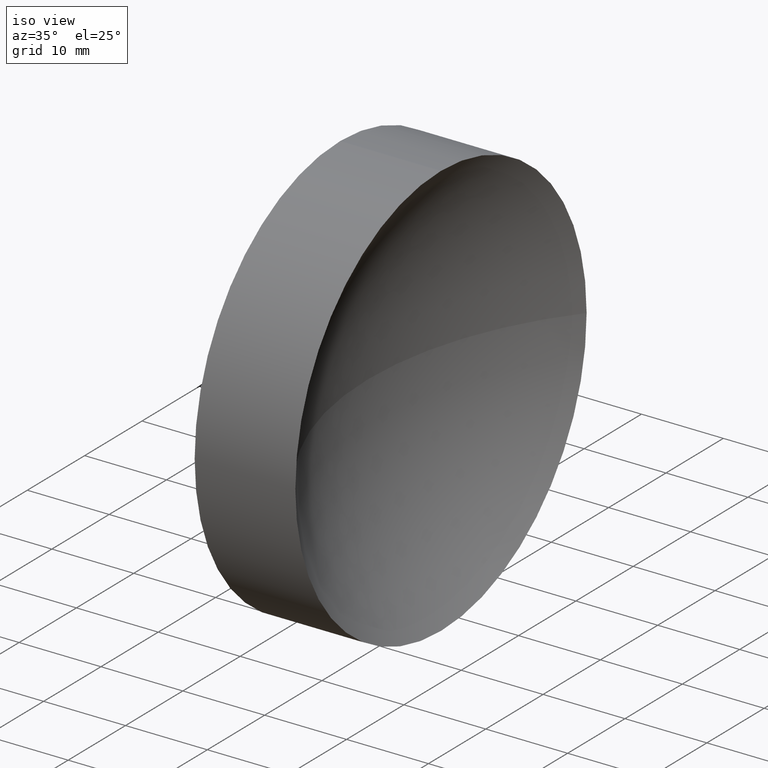
[diagram: clean part render]
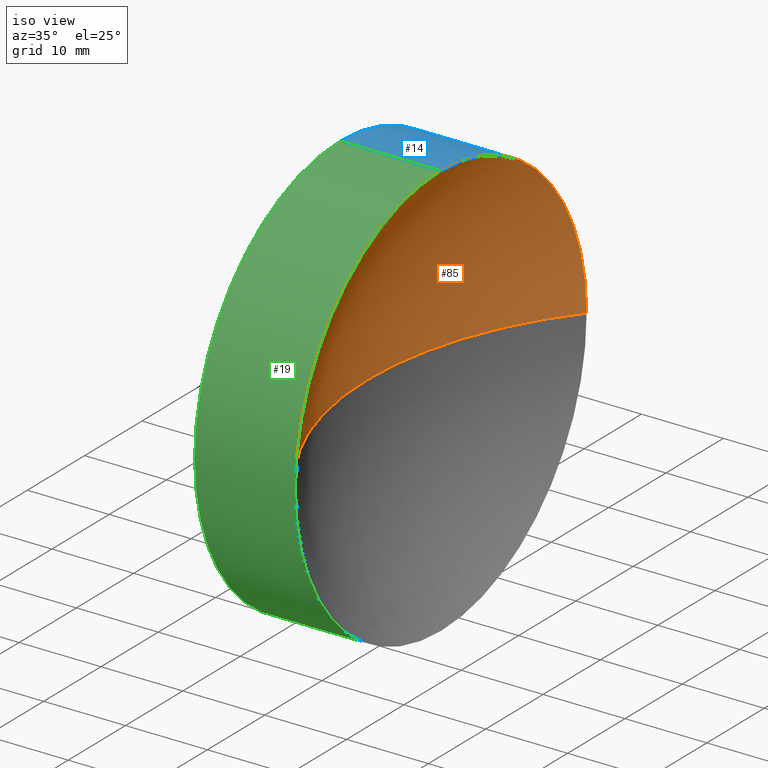
[diagram: same view with three faces highlighted in distinct colors, each labeled with its STEP entity id]
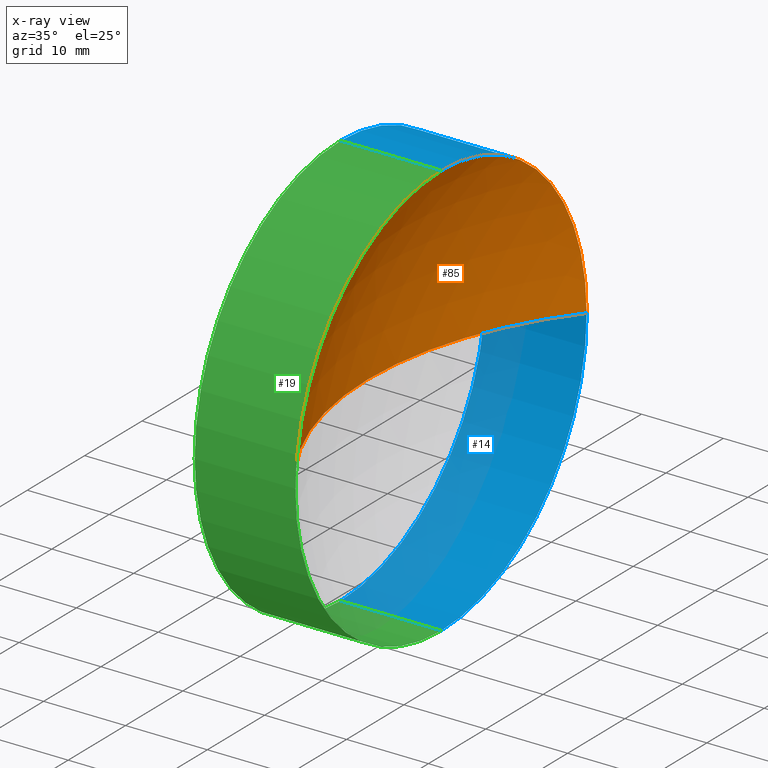
[diagram: x-ray of the same camera — body ghosted, the three highlighted faces saturated]
A machine part, iso view with three faces highlighted in distinct colors.
The next image is the same camera in x-ray (body ghosted, the three faces saturated) — at least one of them is partly hidden behind the body in this view.
Their STEP definitions:

[orange] entity #85 — the highlighted spherical surface has radius 40.6 mm.
#8 = VERTEX_POINT ( 'NONE', #82 ) ;
#26 = EDGE_LOOP ( 'NONE', ( #86, #87, #88, #89 ) ) ;
#44 = VERTEX_POINT ( 'NONE', #189 ) ;
#46 = EDGE_CURVE ( 'NONE', #58, #44, #187, .T. ) ;
#56 = EDGE_CURVE ( 'NONE', #57, #58, #265, .T. ) ;
#57 = VERTEX_POINT ( 'NONE', #260 ) ;
#58 = VERTEX_POINT ( 'NONE', #259 ) ;
#60 = EDGE_CURVE ( 'NONE', #57, #8, #257, .T. ) ;
#82 = CARTESIAN_POINT ( 'NONE',  ( -2.977472932124407100, 0.3589329228707138800, 0.8722530675037538600 ) ) ;
#84 = EDGE_CURVE ( 'NONE', #44, #8, #251, .T. ) ;
#85 = ADVANCED_FACE ( 'NONE', ( #247 ), #281, .F. ) ;
#86 = ORIENTED_EDGE ( 'NONE', *, *, #60, .F. ) ;
#87 = ORIENTED_EDGE ( 'NONE', *, *, #56, .T. ) ;
#88 = ORIENTED_EDGE ( 'NONE', *, *, #46, .T. ) ;
#89 = ORIENTED_EDGE ( 'NONE', *, *, #84, .T. ) ;
#183 = DIRECTION ( 'NONE',  ( 0.0000000000000000000, 0.0000000000000000000, -1.000000000000000000 ) ) ;
#184 = DIRECTION ( 'NONE',  ( 1.000000000000000000, 0.0000000000000000000, 0.0000000000000000000 ) ) ;
#185 = CARTESIAN_POINT ( 'NONE',  ( -2.977472932124407100, 1.358932922870714100, 0.8722530675037537500 ) ) ;
#186 = AXIS2_PLACEMENT_3D ( 'NONE', #185, #184, #183 ) ;
#187 = CIRCLE ( 'NONE', #186, 1.000000000000000000 ) ;
#189 = CARTESIAN_POINT ( 'NONE',  ( -2.977472932124407100, 1.358932922870714100, 1.872253067503753600 ) ) ;
#247 = FACE_OUTER_BOUND ( 'NONE', #26, .T. ) ;
#248 = DIRECTION ( 'NONE',  ( 0.0000000000000000000, 0.0000000000000000000, -1.000000000000000000 ) ) ;
#249 = DIRECTION ( 'NONE',  ( 1.000000000000000000, 0.0000000000000000000, 0.0000000000000000000 ) ) ;
#250 = AXIS2_PLACEMENT_3D ( 'NONE', #258, #249, #248 ) ;
#251 = CIRCLE ( 'NONE', #250, 1.000000000000000000 ) ;
#253 = DIRECTION ( 'NONE',  ( 0.0000000000000000000, -1.000000000000000000, 8.545435842250277300E-017 ) ) ;
#254 = DIRECTION ( 'NONE',  ( 0.0000000000000000000, 1.224606353822377300E-016, 1.000000000000000000 ) ) ;
#255 = CARTESIAN_POINT ( 'NONE',  ( -1.730491332450129400, 1.358932922870714100, 0.8722530675037537500 ) ) ;
#256 = AXIS2_PLACEMENT_3D ( 'NONE', #255, #254, #253 ) ;
#257 = CIRCLE ( 'NONE', #256, 1.598425196850394400 ) ;
#258 = CARTESIAN_POINT ( 'NONE',  ( -2.977472932124407100, 1.358932922870714100, 0.8722530675037537500 ) ) ;
#259 = CARTESIAN_POINT ( 'NONE',  ( -2.977472932124407100, 2.358932922870714300, 0.8722530675037537500 ) ) ;
#260 = CARTESIAN_POINT ( 'NONE',  ( -3.328916529300524300, 1.358932922870714100, 0.8722530675037537500 ) ) ;
#261 = DIRECTION ( 'NONE',  ( -1.000000000000000000, 0.0000000000000000000, 0.0000000000000000000 ) ) ;
#262 = DIRECTION ( 'NONE',  ( 0.0000000000000000000, 0.0000000000000000000, -1.000000000000000000 ) ) ;
#263 = CARTESIAN_POINT ( 'NONE',  ( -1.730491332450129400, 1.358932922870714100, 0.8722530675037537500 ) ) ;
#264 = AXIS2_PLACEMENT_3D ( 'NONE', #263, #262, #261 ) ;
#265 = CIRCLE ( 'NONE', #264, 1.598425196850394600 ) ;
#278 = DIRECTION ( 'NONE',  ( 0.0000000000000000000, 1.000000000000000000, 0.0000000000000000000 ) ) ;
#279 = DIRECTION ( 'NONE',  ( 0.0000000000000000000, 0.0000000000000000000, 1.000000000000000000 ) ) ;
#280 = AXIS2_PLACEMENT_3D ( 'NONE', #282, #279, #278 ) ;
#281 = SPHERICAL_SURFACE ( 'NONE', #280, 1.598425196850394400 ) ;
#282 = CARTESIAN_POINT ( 'NONE',  ( -1.730491332450129400, 1.358932922870714100, 0.8722530675037537500 ) ) ;

[blue] entity #14 — the highlighted cylindrical surface (partial cylindrical patch) has radius 25.4 mm, axis along (1, 0, 0).
#11 = VERTEX_POINT ( 'NONE', #76 ) ;
#13 = EDGE_CURVE ( 'NONE', #11, #58, #74, .T. ) ;
#14 = ADVANCED_FACE ( 'NONE', ( #69 ), #108, .T. ) ;
#15 = EDGE_LOOP ( 'NONE', ( #16, #42, #45, #47, #48, #51 ) ) ;
#16 = ORIENTED_EDGE ( 'NONE', *, *, #39, .T. ) ;
#39 = EDGE_CURVE ( 'NONE', #40, #41, #200, .T. ) ;
#40 = VERTEX_POINT ( 'NONE', #195 ) ;
#41 = VERTEX_POINT ( 'NONE', #194 ) ;
#42 = ORIENTED_EDGE ( 'NONE', *, *, #43, .T. ) ;
#43 = EDGE_CURVE ( 'NONE', #41, #44, #193, .T. ) ;
#44 = VERTEX_POINT ( 'NONE', #189 ) ;
#45 = ORIENTED_EDGE ( 'NONE', *, *, #46, .F. ) ;
#46 = EDGE_CURVE ( 'NONE', #58, #44, #187, .T. ) ;
#47 = ORIENTED_EDGE ( 'NONE', *, *, #13, .F. ) ;
#48 = ORIENTED_EDGE ( 'NONE', *, *, #49, .F. ) ;
#49 = EDGE_CURVE ( 'NONE', #50, #11, #188, .T. ) ;
#50 = VERTEX_POINT ( 'NONE', #233 ) ;
#51 = ORIENTED_EDGE ( 'NONE', *, *, #52, .T. ) ;
#52 = EDGE_CURVE ( 'NONE', #50, #40, #231, .T. ) ;
#58 = VERTEX_POINT ( 'NONE', #259 ) ;
#69 = FACE_OUTER_BOUND ( 'NONE', #15, .T. ) ;
#70 = DIRECTION ( 'NONE',  ( 0.0000000000000000000, 0.0000000000000000000, -1.000000000000000000 ) ) ;
#71 = DIRECTION ( 'NONE',  ( 1.000000000000000000, 0.0000000000000000000, 0.0000000000000000000 ) ) ;
#72 = CARTESIAN_POINT ( 'NONE',  ( -2.977472932124407100, 1.358932922870714100, 0.8722530675037537500 ) ) ;
#73 = AXIS2_PLACEMENT_3D ( 'NONE', #72, #71, #70 ) ;
#74 = CIRCLE ( 'NONE', #73, 1.000000000000000000 ) ;
#76 = CARTESIAN_POINT ( 'NONE',  ( -2.977472932124407100, 1.358932922870714100, -0.1277469324962462700 ) ) ;
#105 = DIRECTION ( 'NONE',  ( 0.0000000000000000000, 0.0000000000000000000, -1.000000000000000000 ) ) ;
#106 = DIRECTION ( 'NONE',  ( 1.000000000000000000, 0.0000000000000000000, 0.0000000000000000000 ) ) ;
#107 = AXIS2_PLACEMENT_3D ( 'NONE', #111, #106, #105 ) ;
#108 = CYLINDRICAL_SURFACE ( 'NONE', #107, 1.000000000000000700 ) ;
#111 = CARTESIAN_POINT ( 'NONE',  ( -3.328916529300524300, 1.358932922870714100, 0.8722530675037537500 ) ) ;
#183 = DIRECTION ( 'NONE',  ( 0.0000000000000000000, 0.0000000000000000000, -1.000000000000000000 ) ) ;
#184 = DIRECTION ( 'NONE',  ( 1.000000000000000000, 0.0000000000000000000, 0.0000000000000000000 ) ) ;
#185 = CARTESIAN_POINT ( 'NONE',  ( -2.977472932124407100, 1.358932922870714100, 0.8722530675037537500 ) ) ;
#186 = AXIS2_PLACEMENT_3D ( 'NONE', #185, #184, #183 ) ;
#187 = CIRCLE ( 'NONE', #186, 1.000000000000000000 ) ;
#188 = LINE ( 'NONE', #236, #235 ) ;
#189 = CARTESIAN_POINT ( 'NONE',  ( -2.977472932124407100, 1.358932922870714100, 1.872253067503753600 ) ) ;
#190 = DIRECTION ( 'NONE',  ( 1.000000000000000000, 0.0000000000000000000, 0.0000000000000000000 ) ) ;
#191 = VECTOR ( 'NONE', #190, 39.37007874015748100 ) ;
#192 = CARTESIAN_POINT ( 'NONE',  ( -3.328916529300524300, 1.358932922870714100, 1.872253067503754500 ) ) ;
#193 = LINE ( 'NONE', #192, #191 ) ;
#194 = CARTESIAN_POINT ( 'NONE',  ( -3.462008789174868500, 1.358932922870714100, 1.872253067503755000 ) ) ;
#195 = CARTESIAN_POINT ( 'NONE',  ( -3.462008789174867700, 2.358932922870714300, 0.8722530675037537500 ) ) ;
#196 = DIRECTION ( 'NONE',  ( 0.0000000000000000000, 0.0000000000000000000, -1.000000000000000000 ) ) ;
#197 = DIRECTION ( 'NONE',  ( 1.000000000000000000, 0.0000000000000000000, 0.0000000000000000000 ) ) ;
#198 = CARTESIAN_POINT ( 'NONE',  ( -3.462008789174868500, 1.358932922870714100, 0.8722530675037537500 ) ) ;
#199 = AXIS2_PLACEMENT_3D ( 'NONE', #198, #197, #196 ) ;
#200 = CIRCLE ( 'NONE', #199, 1.000000000000001300 ) ;
#227 = DIRECTION ( 'NONE',  ( 0.0000000000000000000, 0.0000000000000000000, -1.000000000000000000 ) ) ;
#228 = DIRECTION ( 'NONE',  ( 1.000000000000000000, 0.0000000000000000000, 0.0000000000000000000 ) ) ;
#229 = CARTESIAN_POINT ( 'NONE',  ( -3.462008789174868500, 1.358932922870714100, 0.8722530675037537500 ) ) ;
#230 = AXIS2_PLACEMENT_3D ( 'NONE', #229, #228, #227 ) ;
#231 = CIRCLE ( 'NONE', #230, 1.000000000000001300 ) ;
#233 = CARTESIAN_POINT ( 'NONE',  ( -3.462008789174868500, 1.358932922870714100, -0.1277469324962476600 ) ) ;
#234 = DIRECTION ( 'NONE',  ( 1.000000000000000000, 0.0000000000000000000, 0.0000000000000000000 ) ) ;
#235 = VECTOR ( 'NONE', #234, 39.37007874015748100 ) ;
#236 = CARTESIAN_POINT ( 'NONE',  ( -3.328916529300524300, 1.358932922870714100, -0.1277469324962469700 ) ) ;
#259 = CARTESIAN_POINT ( 'NONE',  ( -2.977472932124407100, 2.358932922870714300, 0.8722530675037537500 ) ) ;

[green] entity #19 — the highlighted cylindrical surface (partial cylindrical patch) has radius 25.4 mm, axis along (1, 0, 0).
#8 = VERTEX_POINT ( 'NONE', #82 ) ;
#10 = EDGE_CURVE ( 'NONE', #8, #11, #81, .T. ) ;
#11 = VERTEX_POINT ( 'NONE', #76 ) ;
#19 = ADVANCED_FACE ( 'NONE', ( #143 ), #123, .T. ) ;
#20 = EDGE_LOOP ( 'NONE', ( #21, #22, #23, #24, #25, #83 ) ) ;
#21 = ORIENTED_EDGE ( 'NONE', *, *, #43, .F. ) ;
#22 = ORIENTED_EDGE ( 'NONE', *, *, #34, .T. ) ;
#23 = ORIENTED_EDGE ( 'NONE', *, *, #94, .T. ) ;
#24 = ORIENTED_EDGE ( 'NONE', *, *, #49, .T. ) ;
#25 = ORIENTED_EDGE ( 'NONE', *, *, #10, .F. ) ;
#32 = VERTEX_POINT ( 'NONE', #171 ) ;
#34 = EDGE_CURVE ( 'NONE', #41, #32, #169, .T. ) ;
#41 = VERTEX_POINT ( 'NONE', #194 ) ;
#43 = EDGE_CURVE ( 'NONE', #41, #44, #193, .T. ) ;
#44 = VERTEX_POINT ( 'NONE', #189 ) ;
#49 = EDGE_CURVE ( 'NONE', #50, #11, #188, .T. ) ;
#50 = VERTEX_POINT ( 'NONE', #233 ) ;
#76 = CARTESIAN_POINT ( 'NONE',  ( -2.977472932124407100, 1.358932922870714100, -0.1277469324962462700 ) ) ;
#77 = DIRECTION ( 'NONE',  ( 0.0000000000000000000, 0.0000000000000000000, -1.000000000000000000 ) ) ;
#78 = DIRECTION ( 'NONE',  ( 1.000000000000000000, 0.0000000000000000000, 0.0000000000000000000 ) ) ;
#79 = CARTESIAN_POINT ( 'NONE',  ( -2.977472932124407100, 1.358932922870714100, 0.8722530675037537500 ) ) ;
#80 = AXIS2_PLACEMENT_3D ( 'NONE', #79, #78, #77 ) ;
#81 = CIRCLE ( 'NONE', #80, 1.000000000000000000 ) ;
#82 = CARTESIAN_POINT ( 'NONE',  ( -2.977472932124407100, 0.3589329228707138800, 0.8722530675037538600 ) ) ;
#83 = ORIENTED_EDGE ( 'NONE', *, *, #84, .F. ) ;
#84 = EDGE_CURVE ( 'NONE', #44, #8, #251, .T. ) ;
#94 = EDGE_CURVE ( 'NONE', #32, #50, #277, .T. ) ;
#121 = DIRECTION ( 'NONE',  ( 1.000000000000000000, 0.0000000000000000000, 0.0000000000000000000 ) ) ;
#122 = AXIS2_PLACEMENT_3D ( 'NONE', #125, #121, #182 ) ;
#123 = CYLINDRICAL_SURFACE ( 'NONE', #122, 1.000000000000000700 ) ;
#125 = CARTESIAN_POINT ( 'NONE',  ( -3.328916529300524300, 1.358932922870714100, 0.8722530675037537500 ) ) ;
#143 = FACE_OUTER_BOUND ( 'NONE', #20, .T. ) ;
#165 = DIRECTION ( 'NONE',  ( 0.0000000000000000000, 0.0000000000000000000, -1.000000000000000000 ) ) ;
#166 = DIRECTION ( 'NONE',  ( 1.000000000000000000, 0.0000000000000000000, 0.0000000000000000000 ) ) ;
#167 = CARTESIAN_POINT ( 'NONE',  ( -3.462008789174868500, 1.358932922870714100, 0.8722530675037537500 ) ) ;
#168 = AXIS2_PLACEMENT_3D ( 'NONE', #167, #166, #165 ) ;
#169 = CIRCLE ( 'NONE', #168, 1.000000000000001300 ) ;
#171 = CARTESIAN_POINT ( 'NONE',  ( -3.462008789174868500, 0.3589329228707141600, 0.8722530675037538600 ) ) ;
#182 = DIRECTION ( 'NONE',  ( 0.0000000000000000000, 0.0000000000000000000, -1.000000000000000000 ) ) ;
#188 = LINE ( 'NONE', #236, #235 ) ;
#189 = CARTESIAN_POINT ( 'NONE',  ( -2.977472932124407100, 1.358932922870714100, 1.872253067503753600 ) ) ;
#190 = DIRECTION ( 'NONE',  ( 1.000000000000000000, 0.0000000000000000000, 0.0000000000000000000 ) ) ;
#191 = VECTOR ( 'NONE', #190, 39.37007874015748100 ) ;
#192 = CARTESIAN_POINT ( 'NONE',  ( -3.328916529300524300, 1.358932922870714100, 1.872253067503754500 ) ) ;
#193 = LINE ( 'NONE', #192, #191 ) ;
#194 = CARTESIAN_POINT ( 'NONE',  ( -3.462008789174868500, 1.358932922870714100, 1.872253067503755000 ) ) ;
#233 = CARTESIAN_POINT ( 'NONE',  ( -3.462008789174868500, 1.358932922870714100, -0.1277469324962476600 ) ) ;
#234 = DIRECTION ( 'NONE',  ( 1.000000000000000000, 0.0000000000000000000, 0.0000000000000000000 ) ) ;
#235 = VECTOR ( 'NONE', #234, 39.37007874015748100 ) ;
#236 = CARTESIAN_POINT ( 'NONE',  ( -3.328916529300524300, 1.358932922870714100, -0.1277469324962469700 ) ) ;
#248 = DIRECTION ( 'NONE',  ( 0.0000000000000000000, 0.0000000000000000000, -1.000000000000000000 ) ) ;
#249 = DIRECTION ( 'NONE',  ( 1.000000000000000000, 0.0000000000000000000, 0.0000000000000000000 ) ) ;
#250 = AXIS2_PLACEMENT_3D ( 'NONE', #258, #249, #248 ) ;
#251 = CIRCLE ( 'NONE', #250, 1.000000000000000000 ) ;
#258 = CARTESIAN_POINT ( 'NONE',  ( -2.977472932124407100, 1.358932922870714100, 0.8722530675037537500 ) ) ;
#273 = DIRECTION ( 'NONE',  ( 0.0000000000000000000, 0.0000000000000000000, -1.000000000000000000 ) ) ;
#274 = DIRECTION ( 'NONE',  ( 1.000000000000000000, 0.0000000000000000000, 0.0000000000000000000 ) ) ;
#275 = CARTESIAN_POINT ( 'NONE',  ( -3.462008789174868500, 1.358932922870714100, 0.8722530675037537500 ) ) ;
#276 = AXIS2_PLACEMENT_3D ( 'NONE', #275, #274, #273 ) ;
#277 = CIRCLE ( 'NONE', #276, 1.000000000000001300 ) ;